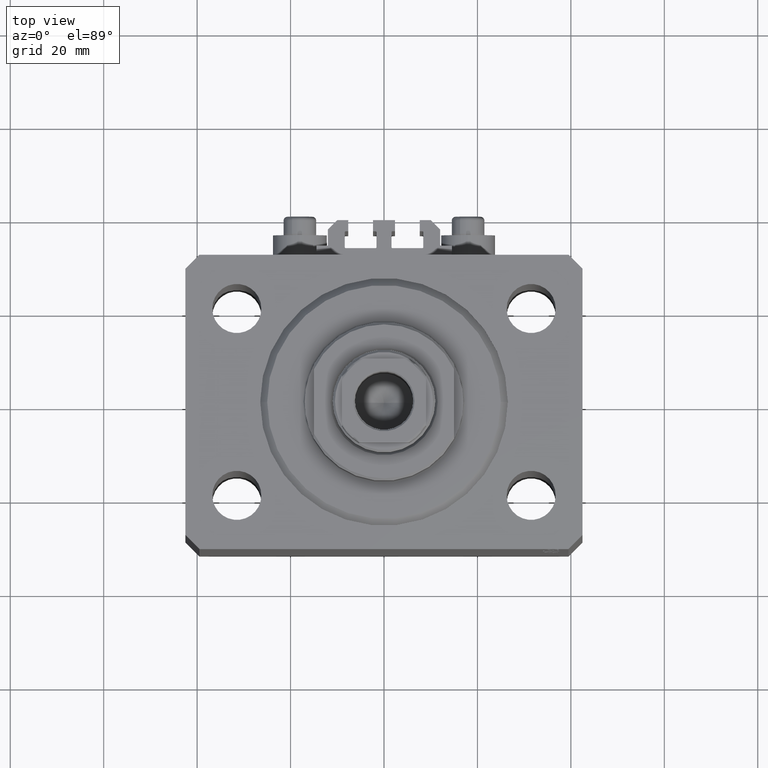
[diagram: clean part render]
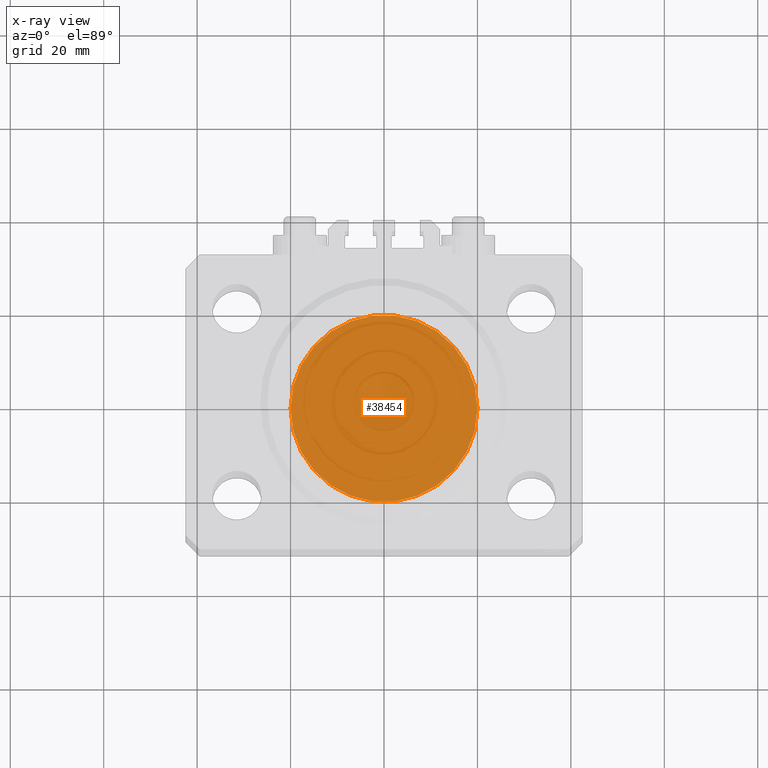
[diagram: x-ray — body ghosted, one internal face saturated and labeled with its STEP entity id]
A machine part, top view, then the same camera in x-ray: the body is ghosted and one INTERNAL B-rep face — a face not visible from any outside direction — is saturated and labeled: STEP entity #38454.
In plain terms, the highlighted planar face has unit normal (0, 0, 1).
Its self-contained STEP definition (entity closure, byte-faithful):
#2418 = DIRECTION ( 'NONE',  ( 1.000000000000000000, 0.000000000000000000, 0.000000000000000000 ) ) ;
#3285 = DIRECTION ( 'NONE',  ( 1.000000000000000000, 0.000000000000000000, -0.000000000000000000 ) ) ;
#7322 = PLANE ( 'NONE',  #15586 ) ;
#10015 = CARTESIAN_POINT ( 'NONE',  ( 0.000000000000000000, 0.000000000000000000, 0.000000000000000000 ) ) ;
#13138 = DIRECTION ( 'NONE',  ( 0.000000000000000000, 0.000000000000000000, 1.000000000000000000 ) ) ;
#14003 = DIRECTION ( 'NONE',  ( 0.000000000000000000, 0.000000000000000000, 1.000000000000000000 ) ) ;
#14303 = EDGE_CURVE ( 'NONE', #38342, #34001, #22718, .T. ) ;
#14710 = FACE_OUTER_BOUND ( 'NONE', #43830, .T. ) ;
#15586 = AXIS2_PLACEMENT_3D ( 'NONE', #25014, #14003, #3285 ) ;
#20562 = CARTESIAN_POINT ( 'NONE',  ( 0.000000000000000000, 0.000000000000000000, 0.000000000000000000 ) ) ;
#22718 = CIRCLE ( 'NONE', #46380, 20.00000000000000000 ) ;
#25014 = CARTESIAN_POINT ( 'NONE',  ( 0.000000000000000000, 0.000000000000000000, 0.000000000000000000 ) ) ;
#25658 = AXIS2_PLACEMENT_3D ( 'NONE', #20562, #13138, #2418 ) ;
#29983 = CARTESIAN_POINT ( 'NONE',  ( 20.00000000000000000, 2.449293598294706513E-15, 0.000000000000000000 ) ) ;
#30300 = CARTESIAN_POINT ( 'NONE',  ( -20.00000000000000000, 0.000000000000000000, 0.000000000000000000 ) ) ;
#32786 = ORIENTED_EDGE ( 'NONE', *, *, #14303, .F. ) ;
#34001 = VERTEX_POINT ( 'NONE', #29983 ) ;
#34787 = CIRCLE ( 'NONE', #25658, 20.00000000000000000 ) ;
#38342 = VERTEX_POINT ( 'NONE', #30300 ) ;
#38454 = ADVANCED_FACE ( 'NONE', ( #14710 ), #7322, .F. ) ;
#39385 = DIRECTION ( 'NONE',  ( 0.000000000000000000, 0.000000000000000000, 1.000000000000000000 ) ) ;
#42651 = EDGE_CURVE ( 'NONE', #34001, #38342, #34787, .T. ) ;
#43210 = DIRECTION ( 'NONE',  ( 1.000000000000000000, 0.000000000000000000, 0.000000000000000000 ) ) ;
#43830 = EDGE_LOOP ( 'NONE', ( #32786, #47183 ) ) ;
#46380 = AXIS2_PLACEMENT_3D ( 'NONE', #10015, #39385, #43210 ) ;
#47183 = ORIENTED_EDGE ( 'NONE', *, *, #42651, .F. ) ;